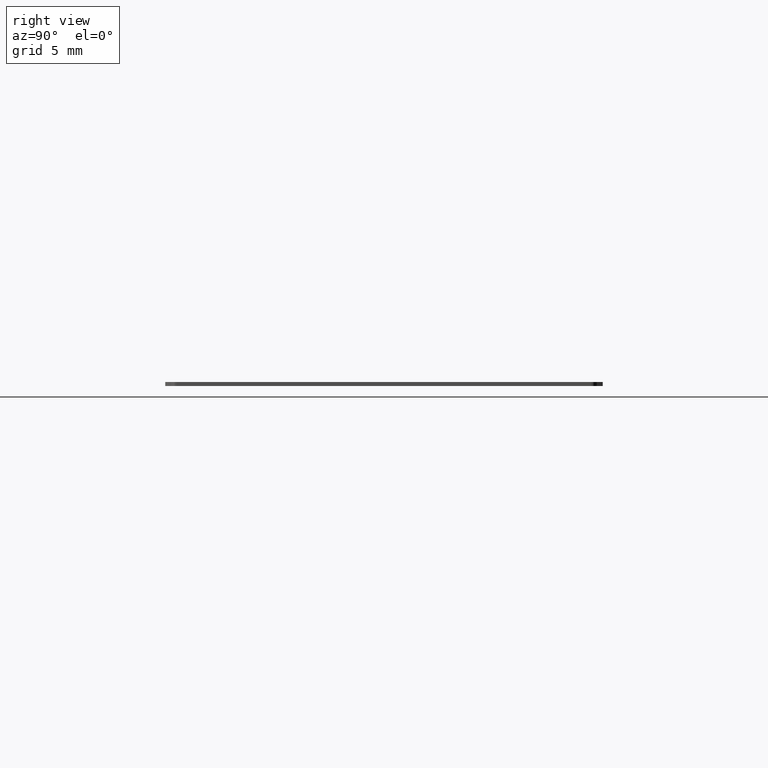
[diagram: clean part render]
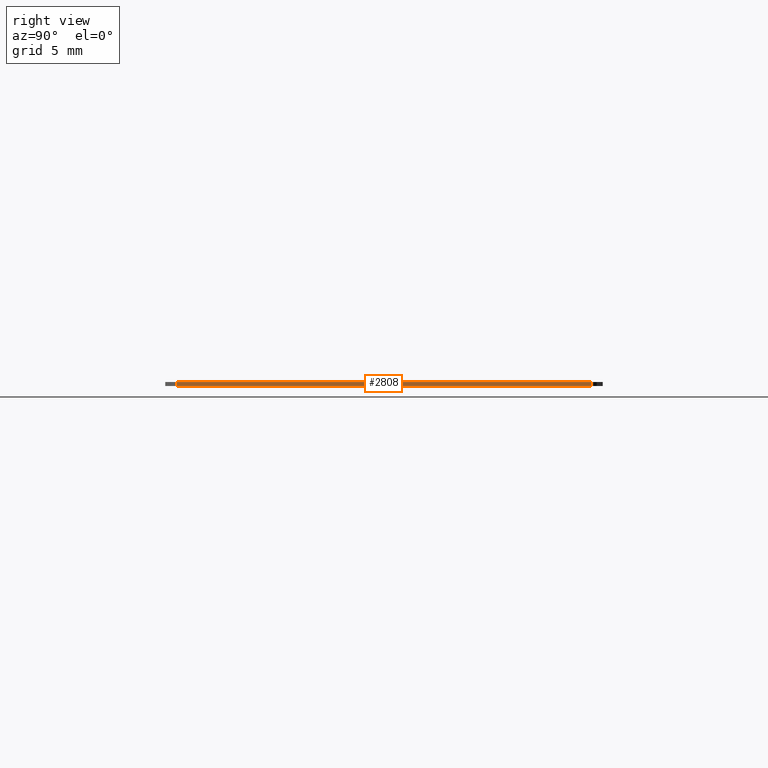
[diagram: same view with one face highlighted and labeled with its STEP entity id]
A machine part, right view. The second image highlights one B-rep face of the part: STEP entity #2808.
In plain terms, the highlighted planar face has unit normal (-1, 0.0002, 0).
Its self-contained STEP definition (entity closure, byte-faithful):
#83 = PLANE('',#84);
#84 = AXIS2_PLACEMENT_3D('',#85,#86,#87);
#85 = CARTESIAN_POINT('',(1.10000034,3.921760000011E-003,0.30000194));
#86 = DIRECTION('',(0.E+000,0.E+000,1.));
#87 = DIRECTION('',(1.,0.E+000,-0.E+000));
#137 = PLANE('',#138);
#138 = AXIS2_PLACEMENT_3D('',#139,#140,#141);
#139 = CARTESIAN_POINT('',(1.10000034,3.921760000011E-003,0.E+000));
#140 = DIRECTION('',(0.E+000,0.E+000,1.));
#141 = DIRECTION('',(1.,0.E+000,-0.E+000));
#2700 = PLANE('',#2701);
#2701 = AXIS2_PLACEMENT_3D('',#2702,#2703,#2704);
#2702 = CARTESIAN_POINT('',(44.98259228,0.18294858,0.E+000));
#2703 = DIRECTION('',(-0.989123222695,0.147089259724,0.E+000));
#2704 = DIRECTION('',(0.147089259724,0.989123222695,0.E+000));
#2738 = VERTEX_POINT('',#2739);
#2739 = CARTESIAN_POINT('',(44.9999989,0.30000194,0.30000194));
#2760 = EDGE_CURVE('',#2761,#2738,#2763,.T.);
#2761 = VERTEX_POINT('',#2762);
#2762 = CARTESIAN_POINT('',(44.9999989,0.30000194,0.E+000));
#2763 = SURFACE_CURVE('',#2764,(#2768,#2775),.PCURVE_S1.);
#2764 = LINE('',#2765,#2766);
#2765 = CARTESIAN_POINT('',(44.9999989,0.30000194,0.E+000));
#2766 = VECTOR('',#2767,1.);
#2767 = DIRECTION('',(0.E+000,0.E+000,1.));
#2768 = PCURVE('',#2700,#2769);
#2769 = DEFINITIONAL_REPRESENTATION('',(#2770),#2774);
#2770 = LINE('',#2771,#2772);
#2771 = CARTESIAN_POINT('',(0.118340523521,0.E+000));
#2772 = VECTOR('',#2773,1.);
#2773 = DIRECTION('',(0.E+000,-1.));
#2774 = ( GEOMETRIC_REPRESENTATION_CONTEXT(2) 
PARAMETRIC_REPRESENTATION_CONTEXT() REPRESENTATION_CONTEXT('2D SPACE',''
  ) );
#2775 = PCURVE('',#2776,#2781);
#2776 = PLANE('',#2777);
#2777 = AXIS2_PLACEMENT_3D('',#2778,#2779,#2780);
#2778 = CARTESIAN_POINT('',(44.9999989,0.30000194,0.E+000));
#2779 = DIRECTION('',(-0.999999983026,1.842495430566E-004,0.E+000));
#2780 = DIRECTION('',(1.842495430566E-004,0.999999983026,0.E+000));
#2781 = DEFINITIONAL_REPRESENTATION('',(#2782),#2786);
#2782 = LINE('',#2783,#2784);
#2783 = CARTESIAN_POINT('',(0.E+000,0.E+000));
#2784 = VECTOR('',#2785,1.);
#2785 = DIRECTION('',(0.E+000,-1.));
#2786 = ( GEOMETRIC_REPRESENTATION_CONTEXT(2) 
PARAMETRIC_REPRESENTATION_CONTEXT() REPRESENTATION_CONTEXT('2D SPACE',''
  ) );
#2808 = ADVANCED_FACE('',(#2809),#2776,.F.);
#2809 = FACE_BOUND('',#2810,.F.);
#2810 = EDGE_LOOP('',(#2811,#2812,#2835,#2863));
#2811 = ORIENTED_EDGE('',*,*,#2760,.T.);
#2812 = ORIENTED_EDGE('',*,*,#2813,.T.);
#2813 = EDGE_CURVE('',#2738,#2814,#2816,.T.);
#2814 = VERTEX_POINT('',#2815);
#2815 = CARTESIAN_POINT('',(45.00587646,32.1999991,0.30000194));
#2816 = SURFACE_CURVE('',#2817,(#2821,#2828),.PCURVE_S1.);
#2817 = LINE('',#2818,#2819);
#2818 = CARTESIAN_POINT('',(44.9999989,0.30000194,0.30000194));
#2819 = VECTOR('',#2820,1.);
#2820 = DIRECTION('',(1.842495430566E-004,0.999999983026,0.E+000));
#2821 = PCURVE('',#2776,#2822);
#2822 = DEFINITIONAL_REPRESENTATION('',(#2823),#2827);
#2823 = LINE('',#2824,#2825);
#2824 = CARTESIAN_POINT('',(0.E+000,-0.30000194));
#2825 = VECTOR('',#2826,1.);
#2826 = DIRECTION('',(1.,0.E+000));
#2827 = ( GEOMETRIC_REPRESENTATION_CONTEXT(2) 
PARAMETRIC_REPRESENTATION_CONTEXT() REPRESENTATION_CONTEXT('2D SPACE',''
  ) );
#2828 = PCURVE('',#83,#2829);
#2829 = DEFINITIONAL_REPRESENTATION('',(#2830),#2834);
#2830 = LINE('',#2831,#2832);
#2831 = CARTESIAN_POINT('',(43.89999856,0.29608018));
#2832 = VECTOR('',#2833,1.);
#2833 = DIRECTION('',(1.842495430566E-004,0.999999983026));
#2834 = ( GEOMETRIC_REPRESENTATION_CONTEXT(2) 
PARAMETRIC_REPRESENTATION_CONTEXT() REPRESENTATION_CONTEXT('2D SPACE',''
  ) );
#2835 = ORIENTED_EDGE('',*,*,#2836,.F.);
#2836 = EDGE_CURVE('',#2837,#2814,#2839,.T.);
#2837 = VERTEX_POINT('',#2838);
#2838 = CARTESIAN_POINT('',(45.00587646,32.1999991,0.E+000));
#2839 = SURFACE_CURVE('',#2840,(#2844,#2851),.PCURVE_S1.);
#2840 = LINE('',#2841,#2842);
#2841 = CARTESIAN_POINT('',(45.00587646,32.1999991,0.E+000));
#2842 = VECTOR('',#2843,1.);
#2843 = DIRECTION('',(0.E+000,0.E+000,1.));
#2844 = PCURVE('',#2776,#2845);
#2845 = DEFINITIONAL_REPRESENTATION('',(#2846),#2850);
#2846 = LINE('',#2847,#2848);
#2847 = CARTESIAN_POINT('',(31.899997701469,0.E+000));
#2848 = VECTOR('',#2849,1.);
#2849 = DIRECTION('',(0.E+000,-1.));
#2850 = ( GEOMETRIC_REPRESENTATION_CONTEXT(2) 
PARAMETRIC_REPRESENTATION_CONTEXT() REPRESENTATION_CONTEXT('2D SPACE',''
  ) );
#2851 = PCURVE('',#2852,#2857);
#2852 = PLANE('',#2853);
#2853 = AXIS2_PLACEMENT_3D('',#2854,#2855,#2856);
#2854 = CARTESIAN_POINT('',(45.00587646,32.1999991,0.E+000));
#2855 = DIRECTION('',(-0.980783967241,-0.195096923611,0.E+000));
#2856 = DIRECTION('',(-0.195096923611,0.980783967241,0.E+000));
#2857 = DEFINITIONAL_REPRESENTATION('',(#2858),#2862);
#2858 = LINE('',#2859,#2860);
#2859 = CARTESIAN_POINT('',(0.E+000,0.E+000));
#2860 = VECTOR('',#2861,1.);
#2861 = DIRECTION('',(0.E+000,-1.));
#2862 = ( GEOMETRIC_REPRESENTATION_CONTEXT(2) 
PARAMETRIC_REPRESENTATION_CONTEXT() REPRESENTATION_CONTEXT('2D SPACE',''
  ) );
#2863 = ORIENTED_EDGE('',*,*,#2864,.F.);
#2864 = EDGE_CURVE('',#2761,#2837,#2865,.T.);
#2865 = SURFACE_CURVE('',#2866,(#2870,#2877),.PCURVE_S1.);
#2866 = LINE('',#2867,#2868);
#2867 = CARTESIAN_POINT('',(44.9999989,0.30000194,0.E+000));
#2868 = VECTOR('',#2869,1.);
#2869 = DIRECTION('',(1.842495430566E-004,0.999999983026,0.E+000));
#2870 = PCURVE('',#2776,#2871);
#2871 = DEFINITIONAL_REPRESENTATION('',(#2872),#2876);
#2872 = LINE('',#2873,#2874);
#2873 = CARTESIAN_POINT('',(0.E+000,0.E+000));
#2874 = VECTOR('',#2875,1.);
#2875 = DIRECTION('',(1.,0.E+000));
#2876 = ( GEOMETRIC_REPRESENTATION_CONTEXT(2) 
PARAMETRIC_REPRESENTATION_CONTEXT() REPRESENTATION_CONTEXT('2D SPACE',''
  ) );
#2877 = PCURVE('',#137,#2878);
#2878 = DEFINITIONAL_REPRESENTATION('',(#2879),#2883);
#2879 = LINE('',#2880,#2881);
#2880 = CARTESIAN_POINT('',(43.89999856,0.29608018));
#2881 = VECTOR('',#2882,1.);
#2882 = DIRECTION('',(1.842495430566E-004,0.999999983026));
#2883 = ( GEOMETRIC_REPRESENTATION_CONTEXT(2) 
PARAMETRIC_REPRESENTATION_CONTEXT() REPRESENTATION_CONTEXT('2D SPACE',''
  ) );